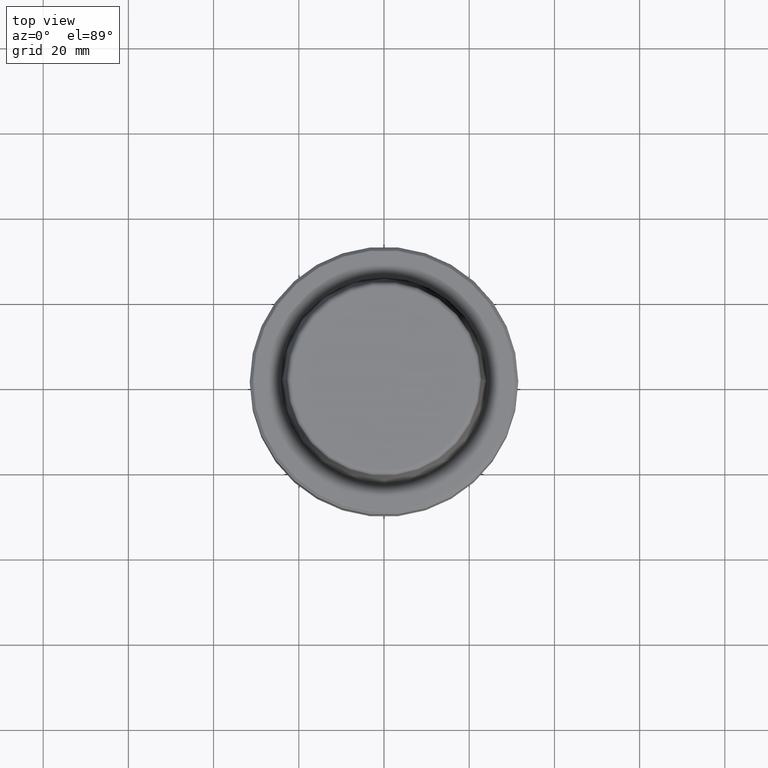
[diagram: clean part render]
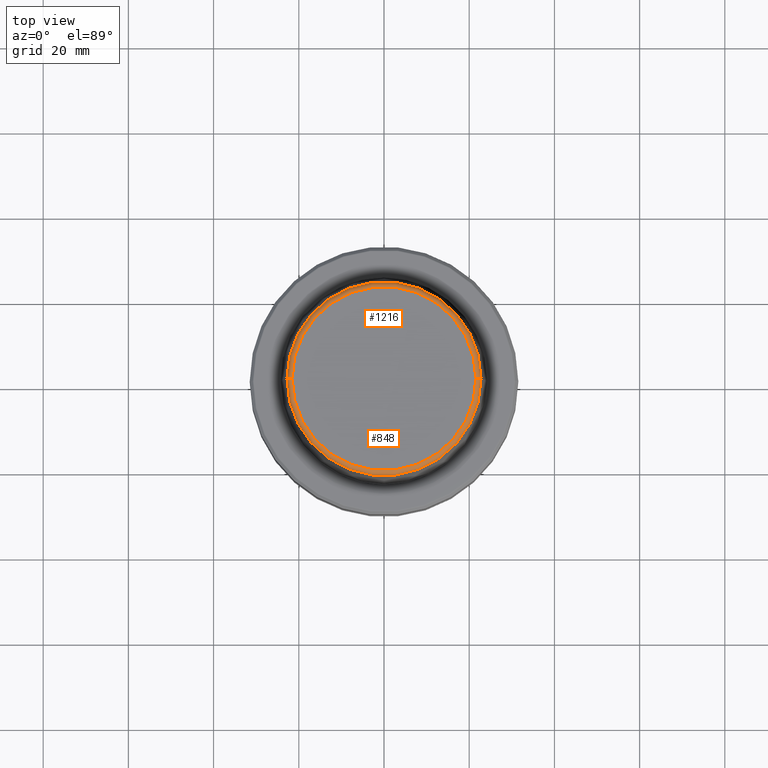
[diagram: same view with one multi-face feature highlighted, each face labeled with its STEP entity id]
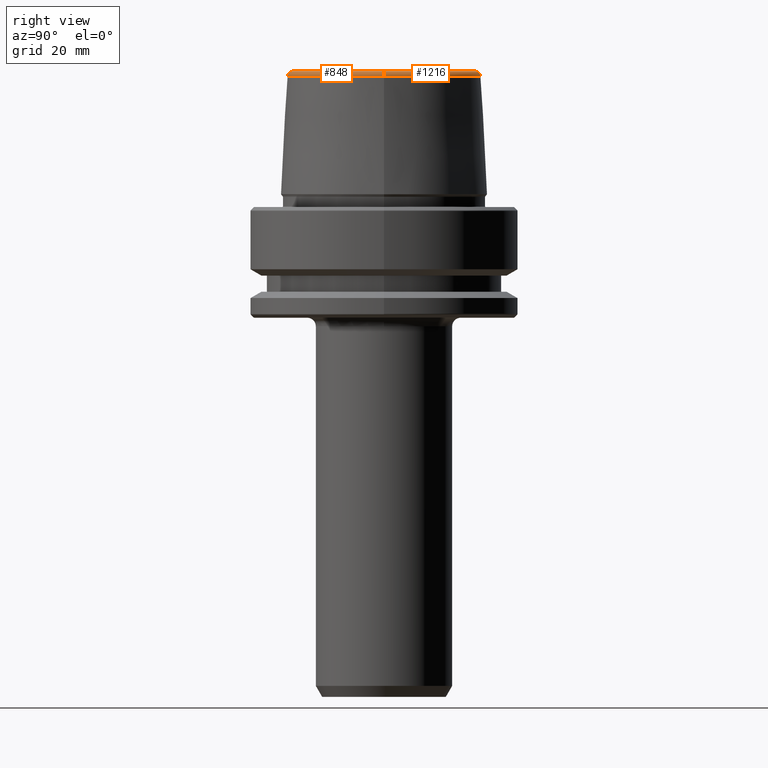
[diagram: same view with one multi-face feature highlighted, each face labeled with its STEP entity id]
A machine part, top view. The highlighted faces form ONE feature: a constant-radius fillet chain: 2 tangent blend faces with common blend radius 1.2 mm. The faces share edges in the B-rep.
A second angle (right view) of the same feature is appended — it is thin or edge-on in the first view.
Their STEP definitions:
[1] entity #1216 (Torus):
#72 = DIRECTION ( 'NONE',  ( 1.224646799147353200E-016, 1.000000000000000000, 0.0000000000000000000 ) ) ;
#76 = FACE_OUTER_BOUND ( 'NONE', #1175, .T. ) ;
#80 = DIRECTION ( 'NONE',  ( -0.0000000000000000000, -0.0000000000000000000, 1.000000000000000000 ) ) ;
#153 = AXIS2_PLACEMENT_3D ( 'NONE', #1176, #80, #674 ) ;
#160 = CARTESIAN_POINT ( 'NONE',  ( 21.58108272732117100, 0.0000000000000000000, 31.89999999999999900 ) ) ;
#175 = CIRCLE ( 'NONE', #611, 1.200000000000003100 ) ;
#347 = CARTESIAN_POINT ( 'NONE',  ( -21.58108272732117100, 2.716307157494421400E-015, 31.89999999999999900 ) ) ;
#493 = VERTEX_POINT ( 'NONE', #685 ) ;
#510 = CARTESIAN_POINT ( 'NONE',  ( 0.0000000000000000000, 0.0000000000000000000, 31.89999999999999900 ) ) ;
#569 = DIRECTION ( 'NONE',  ( 0.0000000000000000000, -1.000000000000000000, 0.0000000000000000000 ) ) ;
#587 = CARTESIAN_POINT ( 'NONE',  ( 22.77957961851797100, 2.874852597157249900E-015, 30.76004333261571900 ) ) ;
#611 = AXIS2_PLACEMENT_3D ( 'NONE', #1261, #569, #1172 ) ;
#631 = TOROIDAL_SURFACE ( 'NONE', #153, 21.58108272732117100, 1.200000000000003100 ) ;
#650 = DIRECTION ( 'NONE',  ( 1.000000000000000000, 0.0000000000000000000, 0.0000000000000000000 ) ) ;
#663 = DIRECTION ( 'NONE',  ( -1.000000000000000000, 1.224646799147353200E-016, 0.0000000000000000000 ) ) ;
#674 = DIRECTION ( 'NONE',  ( 1.000000000000000000, 0.0000000000000000000, 0.0000000000000000000 ) ) ;
#678 = VERTEX_POINT ( 'NONE', #160 ) ;
#680 = EDGE_CURVE ( 'NONE', #1259, #493, #897, .T. ) ;
#685 = CARTESIAN_POINT ( 'NONE',  ( -22.77957961851797100, 0.0000000000000000000, 30.76004333261571900 ) ) ;
#723 = EDGE_CURVE ( 'NONE', #678, #1272, #733, .T. ) ;
#733 = CIRCLE ( 'NONE', #936, 21.58108272732117100 ) ;
#736 = EDGE_CURVE ( 'NONE', #1259, #678, #175, .T. ) ;
#742 = DIRECTION ( 'NONE',  ( -0.0000000000000000000, -0.0000000000000000000, 1.000000000000000000 ) ) ;
#754 = EDGE_CURVE ( 'NONE', #493, #1272, #1191, .T. ) ;
#765 = CARTESIAN_POINT ( 'NONE',  ( -21.58108272732117100, 2.642920388414810300E-015, 30.69999999999999200 ) ) ;
#817 = AXIS2_PLACEMENT_3D ( 'NONE', #1088, #742, #650 ) ;
#836 = ORIENTED_EDGE ( 'NONE', *, *, #723, .F. ) ;
#897 = CIRCLE ( 'NONE', #817, 22.77957961851797100 ) ;
#899 = ORIENTED_EDGE ( 'NONE', *, *, #680, .T. ) ;
#913 = DIRECTION ( 'NONE',  ( -0.0000000000000000000, -0.0000000000000000000, 1.000000000000000000 ) ) ;
#936 = AXIS2_PLACEMENT_3D ( 'NONE', #510, #913, #1057 ) ;
#1006 = ORIENTED_EDGE ( 'NONE', *, *, #736, .F. ) ;
#1018 = AXIS2_PLACEMENT_3D ( 'NONE', #765, #72, #663 ) ;
#1057 = DIRECTION ( 'NONE',  ( 1.000000000000000000, 0.0000000000000000000, 0.0000000000000000000 ) ) ;
#1088 = CARTESIAN_POINT ( 'NONE',  ( 0.0000000000000000000, 0.0000000000000000000, 30.76004333261571900 ) ) ;
#1172 = DIRECTION ( 'NONE',  ( 0.0000000000000000000, 0.0000000000000000000, -1.000000000000000000 ) ) ;
#1175 = EDGE_LOOP ( 'NONE', ( #899, #1229, #836, #1006 ) ) ;
#1176 = CARTESIAN_POINT ( 'NONE',  ( 0.0000000000000000000, 0.0000000000000000000, 30.69999999999999200 ) ) ;
#1191 = CIRCLE ( 'NONE', #1018, 1.200000000000003100 ) ;
#1216 = ADVANCED_FACE ( 'NONE', ( #76 ), #631, .T. ) ;
#1229 = ORIENTED_EDGE ( 'NONE', *, *, #754, .T. ) ;
#1259 = VERTEX_POINT ( 'NONE', #587 ) ;
#1261 = CARTESIAN_POINT ( 'NONE',  ( 21.58108272732117100, 0.0000000000000000000, 30.69999999999999200 ) ) ;
#1272 = VERTEX_POINT ( 'NONE', #347 ) ;
[2] entity #848 (Torus):
#72 = DIRECTION ( 'NONE',  ( 1.224646799147353200E-016, 1.000000000000000000, 0.0000000000000000000 ) ) ;
#83 = AXIS2_PLACEMENT_3D ( 'NONE', #1064, #507, #379 ) ;
#160 = CARTESIAN_POINT ( 'NONE',  ( 21.58108272732117100, 0.0000000000000000000, 31.89999999999999900 ) ) ;
#175 = CIRCLE ( 'NONE', #611, 1.200000000000003100 ) ;
#183 = DIRECTION ( 'NONE',  ( -0.0000000000000000000, -0.0000000000000000000, 1.000000000000000000 ) ) ;
#255 = DIRECTION ( 'NONE',  ( 1.000000000000000000, 0.0000000000000000000, 0.0000000000000000000 ) ) ;
#256 = EDGE_CURVE ( 'NONE', #1272, #678, #1093, .T. ) ;
#265 = EDGE_CURVE ( 'NONE', #493, #1259, #1020, .T. ) ;
#344 = DIRECTION ( 'NONE',  ( 1.000000000000000000, 0.0000000000000000000, 0.0000000000000000000 ) ) ;
#347 = CARTESIAN_POINT ( 'NONE',  ( -21.58108272732117100, 2.716307157494421400E-015, 31.89999999999999900 ) ) ;
#379 = DIRECTION ( 'NONE',  ( 1.000000000000000000, 0.0000000000000000000, 0.0000000000000000000 ) ) ;
#455 = ORIENTED_EDGE ( 'NONE', *, *, #754, .F. ) ;
#470 = AXIS2_PLACEMENT_3D ( 'NONE', #862, #183, #344 ) ;
#493 = VERTEX_POINT ( 'NONE', #685 ) ;
#507 = DIRECTION ( 'NONE',  ( -0.0000000000000000000, -0.0000000000000000000, 1.000000000000000000 ) ) ;
#569 = DIRECTION ( 'NONE',  ( 0.0000000000000000000, -1.000000000000000000, 0.0000000000000000000 ) ) ;
#582 = AXIS2_PLACEMENT_3D ( 'NONE', #1145, #1235, #255 ) ;
#587 = CARTESIAN_POINT ( 'NONE',  ( 22.77957961851797100, 2.874852597157249900E-015, 30.76004333261571900 ) ) ;
#611 = AXIS2_PLACEMENT_3D ( 'NONE', #1261, #569, #1172 ) ;
#663 = DIRECTION ( 'NONE',  ( -1.000000000000000000, 1.224646799147353200E-016, 0.0000000000000000000 ) ) ;
#678 = VERTEX_POINT ( 'NONE', #160 ) ;
#685 = CARTESIAN_POINT ( 'NONE',  ( -22.77957961851797100, 0.0000000000000000000, 30.76004333261571900 ) ) ;
#736 = EDGE_CURVE ( 'NONE', #1259, #678, #175, .T. ) ;
#743 = FACE_OUTER_BOUND ( 'NONE', #965, .T. ) ;
#754 = EDGE_CURVE ( 'NONE', #493, #1272, #1191, .T. ) ;
#765 = CARTESIAN_POINT ( 'NONE',  ( -21.58108272732117100, 2.642920388414810300E-015, 30.69999999999999200 ) ) ;
#789 = ORIENTED_EDGE ( 'NONE', *, *, #736, .T. ) ;
#848 = ADVANCED_FACE ( 'NONE', ( #743 ), #984, .T. ) ;
#862 = CARTESIAN_POINT ( 'NONE',  ( 0.0000000000000000000, 0.0000000000000000000, 31.89999999999999900 ) ) ;
#965 = EDGE_LOOP ( 'NONE', ( #455, #994, #789, #1023 ) ) ;
#984 = TOROIDAL_SURFACE ( 'NONE', #582, 21.58108272732117100, 1.200000000000003100 ) ;
#994 = ORIENTED_EDGE ( 'NONE', *, *, #265, .T. ) ;
#1018 = AXIS2_PLACEMENT_3D ( 'NONE', #765, #72, #663 ) ;
#1020 = CIRCLE ( 'NONE', #83, 22.77957961851797100 ) ;
#1023 = ORIENTED_EDGE ( 'NONE', *, *, #256, .F. ) ;
#1064 = CARTESIAN_POINT ( 'NONE',  ( 0.0000000000000000000, 0.0000000000000000000, 30.76004333261571900 ) ) ;
#1093 = CIRCLE ( 'NONE', #470, 21.58108272732117100 ) ;
#1145 = CARTESIAN_POINT ( 'NONE',  ( 0.0000000000000000000, 0.0000000000000000000, 30.69999999999999200 ) ) ;
#1172 = DIRECTION ( 'NONE',  ( 0.0000000000000000000, 0.0000000000000000000, -1.000000000000000000 ) ) ;
#1191 = CIRCLE ( 'NONE', #1018, 1.200000000000003100 ) ;
#1235 = DIRECTION ( 'NONE',  ( -0.0000000000000000000, -0.0000000000000000000, 1.000000000000000000 ) ) ;
#1259 = VERTEX_POINT ( 'NONE', #587 ) ;
#1261 = CARTESIAN_POINT ( 'NONE',  ( 21.58108272732117100, 0.0000000000000000000, 30.69999999999999200 ) ) ;
#1272 = VERTEX_POINT ( 'NONE', #347 ) ;